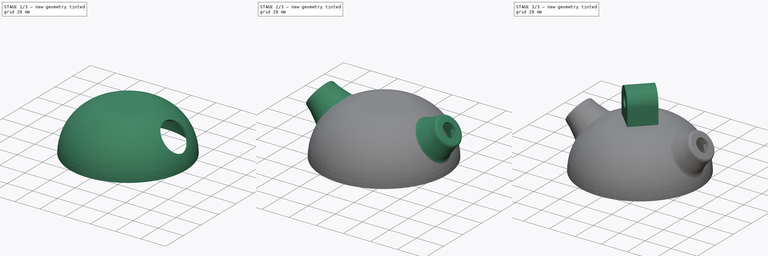
[diagram: build sequence overview — one tinted view per stage of 3, left to right]
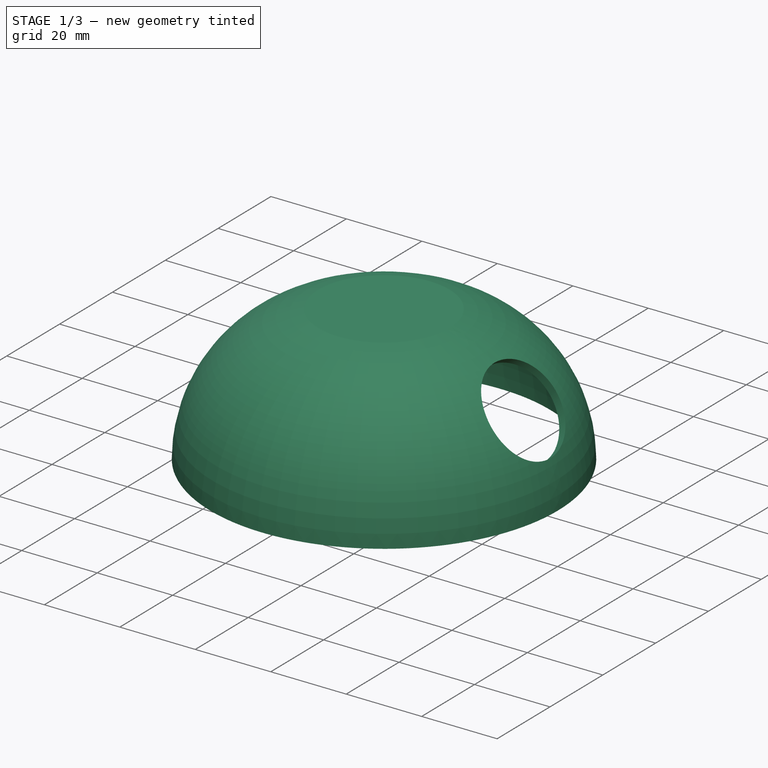
[diagram: stage 1 of 3 — iso view after this stage's code; geometry added in this stage tinted green]
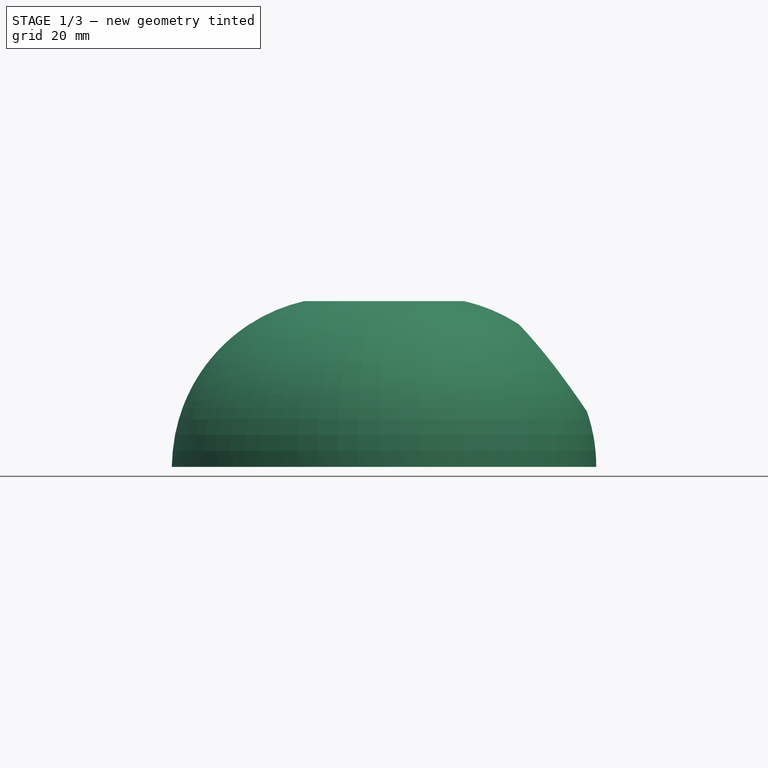
[diagram: stage 1 of 3 — front view after this stage's code; geometry added in this stage tinted green]
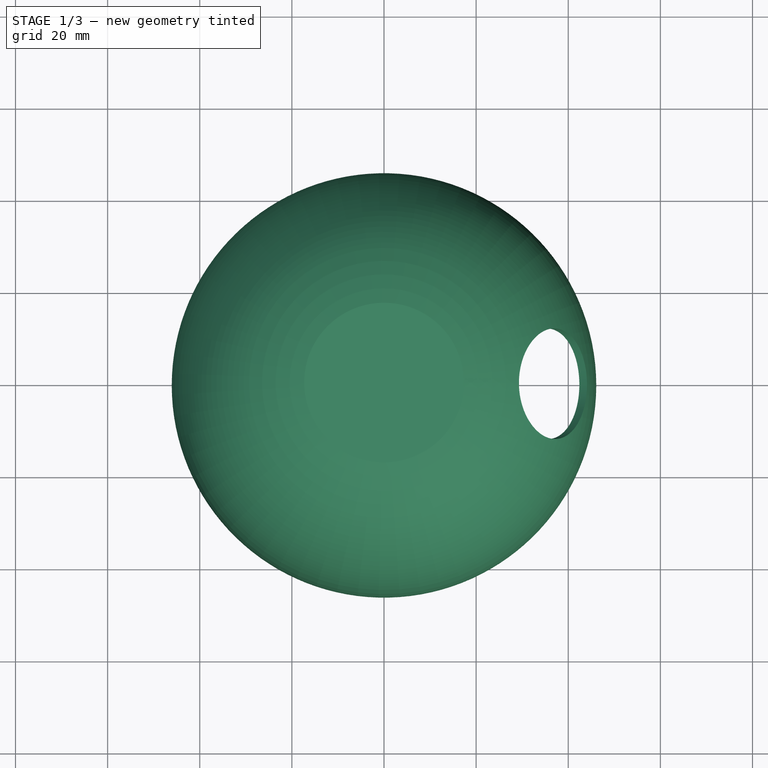
[diagram: stage 1 of 3 — top view after this stage's code; geometry added in this stage tinted green]
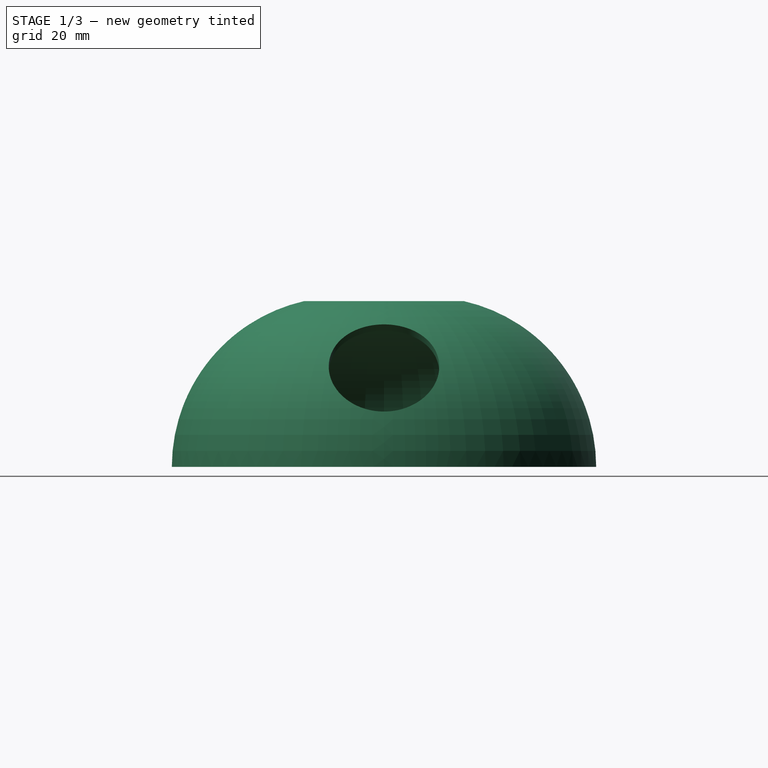
[diagram: stage 1 of 3 — right view after this stage's code; geometry added in this stage tinted green]
FCSTD DOCUMENT  (FreeCAD 0.19R24291 (Git))
Label: Vac_holder2
License: All rights reserved
LicenseURL: http://en.wikipedia.org/wiki/All_rights_reserved
objects: Sketcher::SketchObject×7, PartDesign::Plane×4, PartDesign::Line×3, PartDesign::Pocket×3, PartDesign::Revolution×2, PartDesign::Point×1, PartDesign::CoordinateSystem×1, PartDesign::Mirrored×1, PartDesign::Pad×1, PartDesign::Body×1
note: 30 computed .brp shape members not serialized (recipe doc carries the construction recipe); baked Part::Feature solids carry a one-line shape summary decoded from their .brp

FEATURE [Sketcher::SketchObject] Sketch
  FullyConstrained = true
  MapMode = 5
  Placement = pos=(0,0,0) rot=(1,0,0;1.5708rad)
  Support = -> [XZ_Plane]
  sketch-geometry (6):
    g0: LineSegment StartX=0 StartY=36 StartZ=0 EndX=17.327 EndY=36 EndZ=0
    g1: LineSegment StartX=0 StartY=34 StartZ=0 EndX=17.1 EndY=34 EndZ=0
    g2: LineSegment StartX=46.08 StartY=0 StartZ=0 EndX=44.08 EndY=0 EndZ=0
    g3: ArcOfCircle CenterX=9.16672 CenterY=0 CenterZ=0 NormalX=0 NormalY=0 NormalZ=1 AngleXU=0 Radius=36.9133 StartAngle=0 EndAngle=1.34789
    g4: ArcOfCircle CenterX=9.16672 CenterY=0 CenterZ=0 NormalX=0 NormalY=0 NormalZ=1 AngleXU=0 Radius=34.9133 StartAngle=0 EndAngle=1.34157
    g5: LineSegment StartX=0 StartY=34 StartZ=0 EndX=0 EndY=36 EndZ=0
  constraints (19):
    c: PointOnObject(g0,g-2)
    c: Horizontal(g0)
    c: PointOnObject(g1,g-2)
    c: Horizontal(g1)
    c: PointOnObject(g2,g-1)
    c: Horizontal(g2)
    c: PointOnObject(g3,g-1)
    c: Coincident(g3,g2)
    c: Coincident(g3,g0)
    c: Coincident(g4,g3)
    c: Coincident(g4,g2)
    c: Coincident(g4,g1)
    c: Distance(g2) = 2
    c: Distance(g-1,g2) = 44.08
    c: Coincident(g5,g1)
    c: Coincident(g5,g0)
    c: Distance(g5) = 2
    c: Distance(g-1,g1) = 34
    c: Distance(g1) = 17.1
FEATURE [PartDesign::Revolution] Revolution
  Angle = 360
  Axis = (0,2e-16,1)
  Base = (0,0,0)
  Placement = pos=(0,0,0) rot=(1,0,0;1.5708rad)
  Profile = -> Sketch
  ReferenceAxis = -> Sketch [V_Axis]
  Refine = true
  Reversed = true
FEATURE [Sketcher::SketchObject] Sketch001
  ExternalGeometry = -> [Revolution]
  FullyConstrained = true
  MapMode = 5
  Placement = pos=(0,0,0) rot=(1,0,0;1.5708rad)
  Support = -> [XZ_Plane]
  sketch-geometry (2):
    g0: LineSegment StartX=17.1 StartY=34 StartZ=0 EndX=17.1 EndY=33 EndZ=0
    g1: ArcOfCircle CenterX=10.4084 CenterY=0 CenterZ=0 NormalX=0 NormalY=0 NormalZ=1 AngleXU=0 Radius=33.6716 StartAngle=0 EndAngle=1.37073
  constraints (6):
    c: Coincident(g0,g-3)
    c: Vertical(g0)
    c: Distance(g0) = 1
    c: PointOnObject(g1,g-1)
    c: Coincident(g1,g-3)
    c: Coincident(g1,g0)
FEATURE [PartDesign::Line] DatumLine
  AttacherType = Attacher::AttachEngineLine
  Length = 20
  MapMode = 43
  Placement = pos=(4.16995,1.1e-15,-5.10039) rot=(0.393782,0.393782,0.830585;1.75536rad)
  ResizeMode = 0
  Support = -> [Sketch001]
FEATURE [PartDesign::Point] DatumPoint
  AttacherType = Attacher::AttachEnginePoint
  MapMode = 41
  Placement = pos=(38.2355,5.1e-15,22.7508) rot=(0,0,1;0rad)
  Support = -> [DatumLine,Revolution]
FEATURE [PartDesign::Plane] DatumPlane
  Length = 114.259
  MapMode = 7
  Placement = pos=(38.2355,-6.4e-15,22.7508) rot=(0.393782,0.393782,0.830585;1.75536rad)
  ResizeMode = 0
  Support = -> [DatumLine,DatumPoint]
  Width = 156.085
FEATURE [Sketcher::SketchObject] Sketch002
  FullyConstrained = true
  MapMode = 5
  Placement = pos=(38.2355,-6.4e-15,22.7508) rot=(0.393782,0.393782,0.830585;1.75536rad)
  Support = -> [DatumPlane]
  sketch-geometry (1):
    g0: Circle CenterX=0 CenterY=0 CenterZ=0 NormalX=0 NormalY=0 NormalZ=1 AngleXU=0 Radius=12
  constraints (2):
    c: Coincident(g0,g-1)
    c: Diameter(g0) = 24
FEATURE [PartDesign::Pocket] Pocket
  BaseFeature = -> Revolution
  Length = 5
  Length2 = 100
  Placement = pos=(0,0,0) rot=(1,0,0;1.5708rad)
  Profile = -> Sketch002
  Type = 4
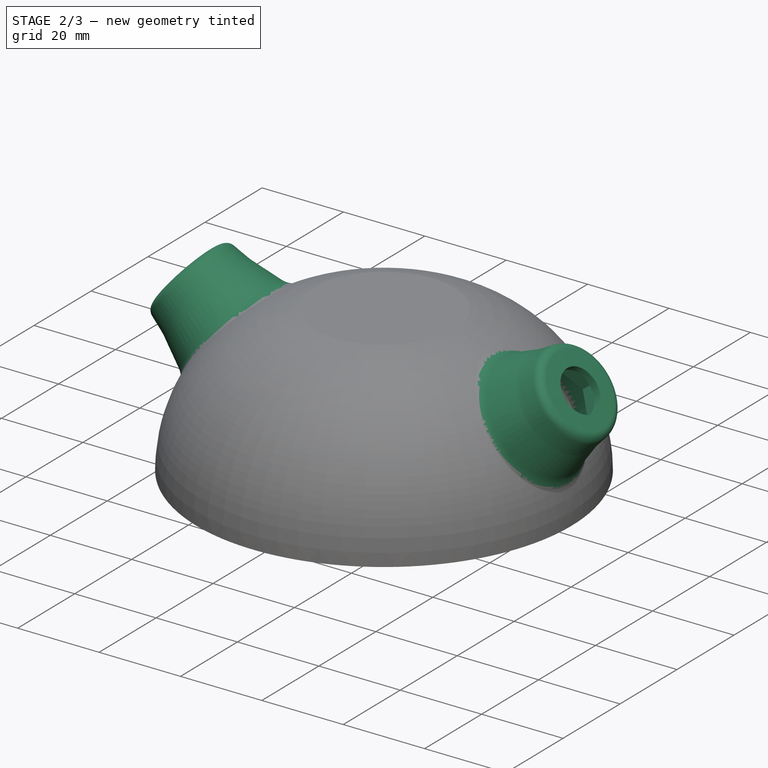
[diagram: stage 2 of 3 — iso view after this stage's code; geometry added in this stage tinted green]
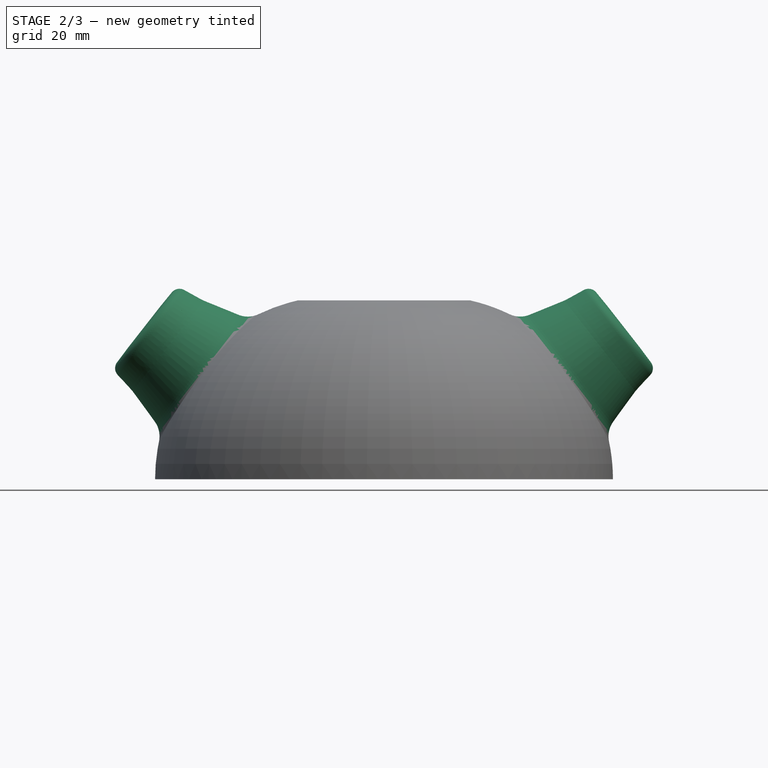
[diagram: stage 2 of 3 — front view after this stage's code; geometry added in this stage tinted green]
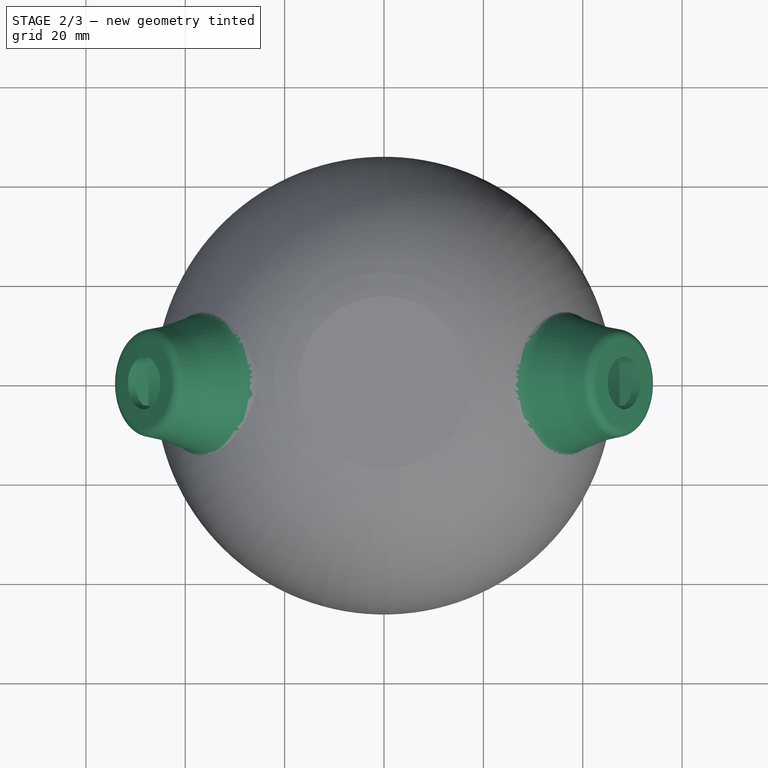
[diagram: stage 2 of 3 — top view after this stage's code; geometry added in this stage tinted green]
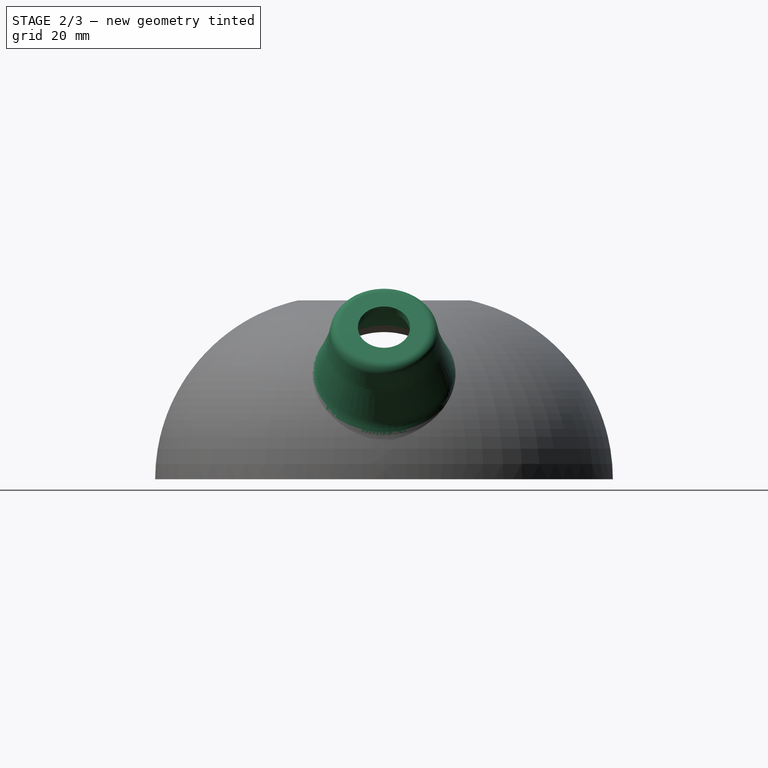
[diagram: stage 2 of 3 — right view after this stage's code; geometry added in this stage tinted green]
FEATURE [PartDesign::CoordinateSystem] Local_CS
  AttacherType = Attacher::AttachEngine3D
  MapMode = 2
  Placement = pos=(4.16995,1.1e-15,-5.10039) rot=(0.393782,0.393782,0.830585;1.75536rad)
  Support = -> [DatumLine]
FEATURE [PartDesign::Plane] DatumPlane001
  Length = 160.992
  MapMode = 4
  Placement = pos=(4.16995,1.1e-15,-5.10039) rot=(0.317855,0.670436,0.670436;3.7571rad)
  ResizeMode = 0
  Support = -> [Local_CS]
  Width = 164.356
FEATURE [Sketcher::SketchObject] Sketch003
  ExternalGeometry = -> [Pocket]
  FullyConstrained = false
  MapMode = 5
  Placement = pos=(4.16995,1.1e-15,-5.10039) rot=(0.317855,0.670436,0.670436;3.7571rad)
  Support = -> [DatumPlane001]
  sketch-geometry (29):
    g0: LineSegment StartX=12 StartY=42.2654 StartZ=0 EndX=9.66025 EndY=49.8723 EndZ=0
    g1: LineSegment StartX=9.66025 StartY=49.8723 StartZ=0 EndX=0 EndY=49.8723 EndZ=0
    g2: LineSegment StartX=4.33013 StartY=57.3723 StartZ=0 EndX=-4.33013 EndY=57.3723 EndZ=0
    g3: LineSegment StartX=-4.33013 StartY=57.3723 StartZ=0 EndX=-8.66025 EndY=49.8723 EndZ=0
    g4: LineSegment StartX=-8.66025 StartY=49.8723 StartZ=0 EndX=-4.33013 EndY=42.3723 EndZ=0
    g5: LineSegment StartX=-4.33013 StartY=42.3723 StartZ=0 EndX=4.33013 EndY=42.3723 EndZ=0
    g6: LineSegment StartX=4.33013 StartY=42.3723 StartZ=0 EndX=8.66025 EndY=49.8723 EndZ=0
    g7: LineSegment StartX=8.66025 StartY=49.8723 StartZ=0 EndX=4.33013 EndY=57.3723 EndZ=0
    g8: Circle CenterX=0 CenterY=49.8723 CenterZ=0 NormalX=0 NormalY=0 NormalZ=1 AngleXU=0 Radius=8.66025
    g9: LineSegment StartX=13.6709 StartY=43.6361 StartZ=0 EndX=11.5719 EndY=50.4603 EndZ=0
    g10: LineSegment StartX=5.26011 StartY=64.1779 StartZ=0 EndX=7.17172 EndY=64.7659 EndZ=0
    g11: ArcOfCircle CenterX=18.4499 CenterY=45.106 CenterZ=0 NormalX=0 NormalY=0 NormalZ=1 AngleXU=0 Radius=5 StartAngle=3.43999 EndAngle=4.27019
    g12: LineSegment StartX=-12 StartY=39.5846 StartZ=0 EndX=12 EndY=40.1601 EndZ=0
    g13: LineSegment StartX=0 StartY=54.8723 StartZ=0 EndX=0 EndY=39.8723 EndZ=0
    g14: LineSegment StartX=0 StartY=56.8723 StartZ=0 EndX=6.5 EndY=56.8723 EndZ=0
    g15: LineSegment StartX=0 StartY=49.8723 StartZ=0 EndX=8.66025 EndY=49.8723 EndZ=0
    g16: LineSegment StartX=0 StartY=54.8723 StartZ=0 EndX=8.66025 EndY=54.8723 EndZ=0
    g17: Circle CenterX=8.66025 CenterY=54.8723 CenterZ=0 NormalX=0 NormalY=0 NormalZ=1 AngleXU=0 Radius=2
    g18: ArcOfCircle CenterX=8.66025 CenterY=54.8723 CenterZ=0 NormalX=0 NormalY=0 NormalZ=1 AngleXU=0 Radius=2 StartAngle=0.179596 EndAngle=1.5708
    g19: LineSegment StartX=6.5 StartY=56.8723 StartZ=0 EndX=8.66025 EndY=56.8723 EndZ=0
    g20: ArcOfCircle CenterX=21.9662 CenterY=53.6574 CenterZ=0 NormalX=0 NormalY=0 NormalZ=1 AngleXU=0 Radius=10.8749 StartAngle=3.32119 EndAngle=3.43999
    g21: LineSegment StartX=10.6281 StartY=55.2296 StartZ=0 EndX=11.2662 EndY=51.7148 EndZ=0
    g22: Circle CenterX=9.66025 CenterY=49.8723 CenterZ=0 NormalX=0 NormalY=0 NormalZ=1 AngleXU=0 Radius=2
    g23: LineSegment StartX=0 StartY=49.8723 StartZ=0 EndX=0 EndY=54.8723 EndZ=0
    g24: LineSegment StartX=0 StartY=54.8723 StartZ=0 EndX=5 EndY=54.8723 EndZ=0
    g25: LineSegment StartX=5 StartY=54.8723 StartZ=0 EndX=5 EndY=56.8723 EndZ=0
    g26: LineSegment StartX=5 StartY=56.8723 StartZ=0 EndX=6.5 EndY=56.8723 EndZ=0
    g27: LineSegment StartX=12 StartY=42.2654 StartZ=0 EndX=12.45 EndY=40.9925 EndZ=0
    g28: LineSegment StartX=12.45 StartY=40.9925 StartZ=0 EndX=16.3103 EndY=40.587 EndZ=0
  constraints (75):
    c: Coincident(g0,g-3)
    c: Coincident(g1,g0)
    c: PointOnObject(g1,g-2)
    c: Horizontal(g1)
    c: Coincident(g2,g3)
    c: Coincident(g3,g4)
    c: Coincident(g4,g5)
    c: Coincident(g5,g6)
    c: Coincident(g6,g7)
    c: Coincident(g7,g2)
    c: Equal(g2, g3-g7) x5
    c: PointOnObject(g2,g8)
    c: PointOnObject(g3,g8)
    c: PointOnObject(g4,g8)
    c: PointOnObject(g5,g8)
    c: PointOnObject(g6,g8)
    c: PointOnObject(g7,g8)
    c: Coincident(g8,g1)
    c: Distance(g6,g4) = 15
    c: PointOnObject(g6,g1)
    c: Distance(g6,g0) = 1
    c: Parallel(g0,g9)
    c: PointOnObject(g10,g0)
    c: PointOnObject(g10,g9)
    c: Perpendicular(g0,g10)
    c: Distance(g10) = 2
    c: Coincident(g11,g9)
    c: Tangent(g9,g11)
    c: Tangent(g11,g-3)
    c: Coincident(g12,g-5)
    c: Coincident(g12,g-4)
    c: PointOnObject(g13,g-2)
    c: PointOnObject(g13,g12)
    c: Vertical(g13)
    c: Distance(g13) = 15
    c: Distance(g1,g13) = 5
    c: PointOnObject(g14,g-2)
    c: Horizontal(g14)
    c: Distance(g1,g14) = 7
    c: Distance(g14) = 6.5
    c: Coincident(g15,g1)
    c: Coincident(g15,g6)
    c: Coincident(g16,g13)
    c: Horizontal(g16)
    c: Equal(g15,g16)
    c: Coincident(g17,g16)
    c: Radius(g17) = 2
    c: Coincident(g18,g16)
    c: PointOnObject(g18,g17)
    c: Coincident(g19,g14)
    c: Coincident(g19,g18)
    c: Horizontal(g19)
    c: Coincident(g20,g9)
    c: Coincident(g21,g18)
    c: Coincident(g21,g20)
    c: Tangent(g18,g21)
    c: Tangent(g21,g20)
    c: Tangent(g20,g9)
    c: Radius(g11) = 5
    c: Coincident(g22,g0)
    c: Radius(g22) = 2
    c: PointOnObject(g9,g22)
    c: Coincident(g23,g1)
    c: Coincident(g23,g13)
    c: Coincident(g24,g23)
    c: PointOnObject(g24,g16)
    c: Distance(g24) = 5
    c: Coincident(g25,g24)
    c: PointOnObject(g25,g14)
    c: Vertical(g25)
    c: Coincident(g26,g25)
    c: Coincident(g26,g19)
    c: Coincident(g27,g0)
    c: Coincident(g28,g27)
    c: Coincident(g28,g11)
FEATURE [PartDesign::Line] DatumLine001
  AttacherType = Attacher::AttachEngineLine
  Length = 20
  MapMode = 25
  Placement = pos=(38.2355,5.1e-15,22.7508) rot=(0.43799,0,0.89898;3.14159rad)
  ResizeMode = 0
  Support = -> [Pocket,DatumPoint]
FEATURE [PartDesign::Revolution] Revolution001
  Angle = 360
  Axis = (0.787488,7e-16,0.61633)
  Base = (38.2355,2.53e-14,22.7508)
  BaseFeature = -> Pocket
  Placement = pos=(0,0,0) rot=(1,0,0;1.5708rad)
  Profile = -> Sketch003
  ReferenceAxis = -> DatumLine001
  Reversed = true
FEATURE [PartDesign::Plane] DatumPlane002
  Length = 154.979
  MapMode = 11
  Placement = pos=(36.5734,-0.0126487,21.3933) rot=(0.443091,-0.001253,0.896476;3.14035rad)
  ResizeMode = 0
  Support = -> [Revolution001]
  Width = 114.6
FEATURE [Sketcher::SketchObject] Sketch004
  FullyConstrained = true
  MapMode = 5
  Placement = pos=(36.5734,-0.0126487,21.3933) rot=(0.443091,-0.001253,0.896476;3.14035rad)
  Support = -> [DatumPlane002]
  sketch-geometry (7):
    g0: LineSegment StartX=0 StartY=8.66025 StartZ=0 EndX=-7.5 EndY=4.33013 EndZ=0
    g1: LineSegment StartX=-7.5 StartY=4.33013 StartZ=0 EndX=-7.5 EndY=-4.33013 EndZ=0
    g2: LineSegment StartX=-7.5 StartY=-4.33013 StartZ=0 EndX=1.8e-15 EndY=-8.66025 EndZ=0
    g3: LineSegment StartX=1.8e-15 StartY=-8.66025 StartZ=0 EndX=7.5 EndY=-4.33013 EndZ=0
    g4: LineSegment StartX=7.5 StartY=-4.33013 StartZ=0 EndX=7.5 EndY=4.33013 EndZ=0
    g5: LineSegment StartX=7.5 StartY=4.33013 StartZ=0 EndX=0 EndY=8.66025 EndZ=0
    g6: Circle CenterX=0 CenterY=0 CenterZ=0 NormalX=0 NormalY=0 NormalZ=1 AngleXU=0 Radius=8.66025
  constraints (16):
    c: Coincident(g0,g1)
    c: Coincident(g1,g2)
    c: Coincident(g2,g3)
    c: Coincident(g3,g4)
    c: Coincident(g4,g5)
    c: Coincident(g5,g0)
    c: Equal(g0, g1-g5) x5
    c: PointOnObject(g0,g6)
    c: PointOnObject(g1,g6)
    c: PointOnObject(g2,g6)
    c: PointOnObject(g3,g6)
    c: PointOnObject(g4,g6)
    c: PointOnObject(g5,g6)
    c: Coincident(g6,g-1)
    c: PointOnObject(g5,g-2)
    c: Distance(g3,g1) = 15
FEATURE [PartDesign::Pocket] Pocket001
  BaseFeature = -> Revolution001
  Length = 13.02
  Length2 = 100
  Placement = pos=(0,0,0) rot=(1,0,0;1.5708rad)
  Profile = -> Sketch004
  Reversed = true
  Type = 0
FEATURE [PartDesign::Mirrored] Mirrored
  BaseFeature = -> Pocket001
  MirrorPlane = -> YZ_Plane
  Originals = -> [Pocket,Revolution001,Pocket001]
  Placement = pos=(0,0,0) rot=(1,0,0;1.5708rad)
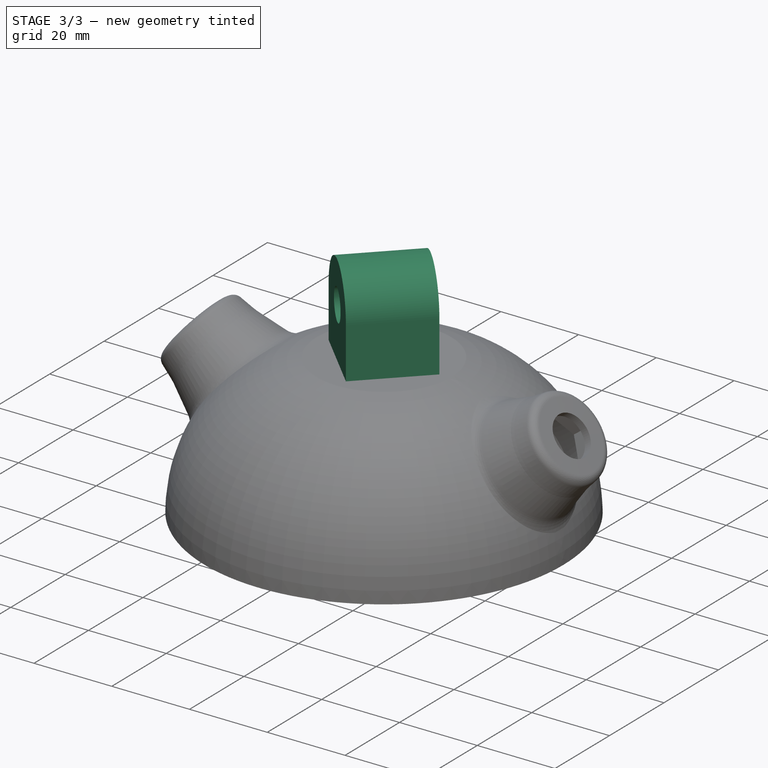
[diagram: stage 3 of 3 — iso view after this stage's code; geometry added in this stage tinted green]
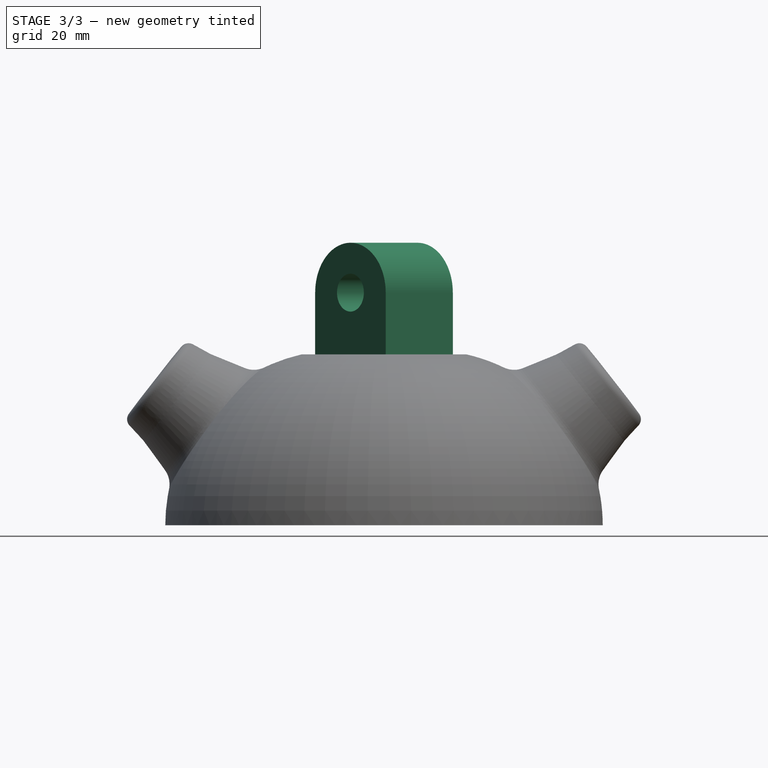
[diagram: stage 3 of 3 — front view after this stage's code; geometry added in this stage tinted green]
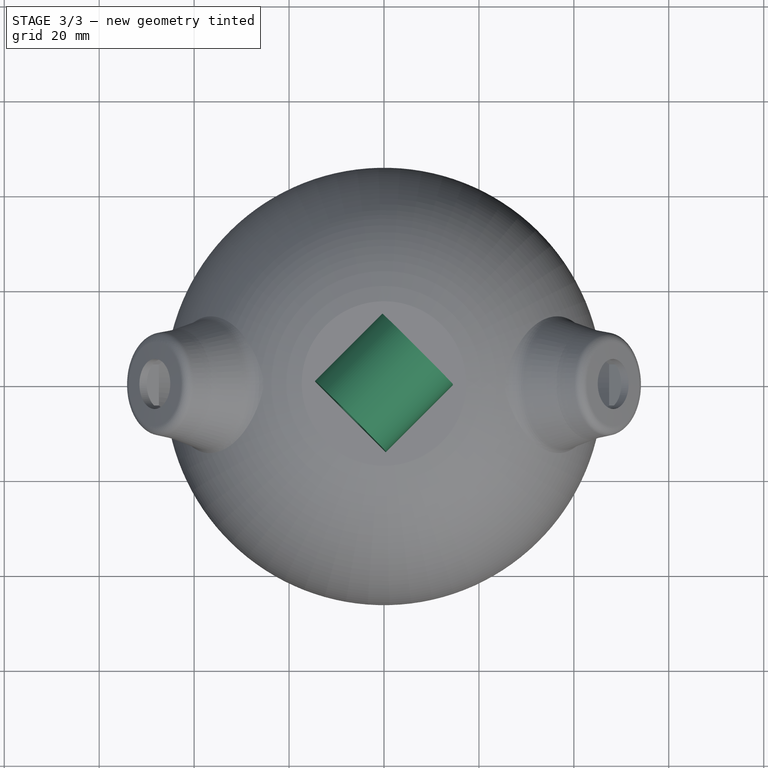
[diagram: stage 3 of 3 — top view after this stage's code; geometry added in this stage tinted green]
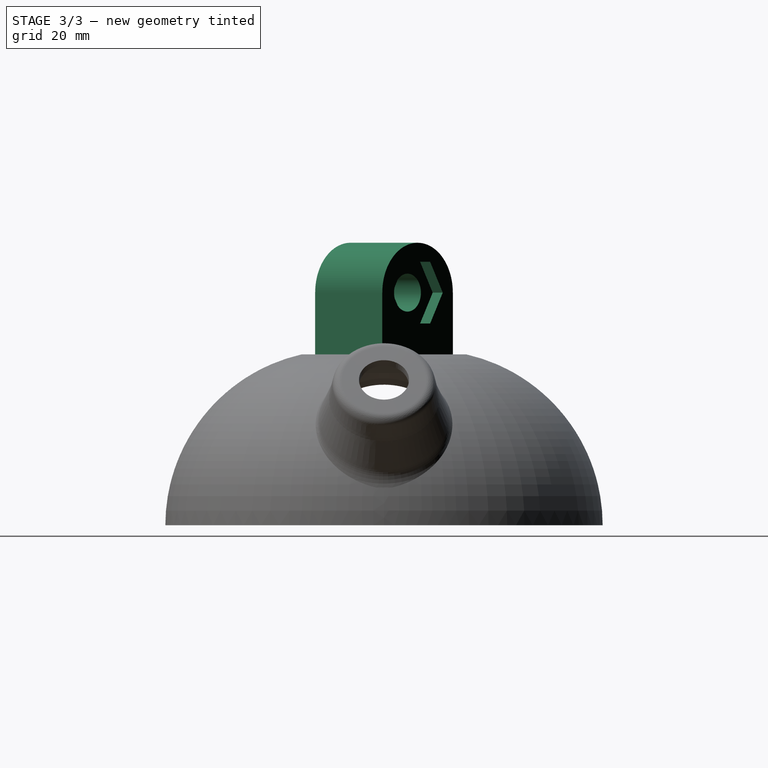
[diagram: stage 3 of 3 — right view after this stage's code; geometry added in this stage tinted green]
FEATURE [PartDesign::Plane] DatumPlane003
  AttachmentOffset = pos=(0,0,0) rot=(0,1,0;0.785398rad)
  Length = 163.508
  MapMode = 5
  Placement = pos=(0,0,0) rot=(0.281085,0.678598,0.678598;2.59356rad)
  ResizeMode = 0
  Support = -> [YZ_Plane]
  Width = 106.3
FEATURE [Sketcher::SketchObject] Sketch005
  ExternalGeometry = -> [Mirrored]
  FullyConstrained = false
  MapMode = 5
  Placement = pos=(0,0,0) rot=(0.281085,0.678598,0.678598;2.59356rad)
  Support = -> [DatumPlane003]
  sketch-geometry (13):
    g0: Circle CenterX=0 CenterY=49 CenterZ=0 NormalX=0 NormalY=0 NormalZ=1 AngleXU=0 Radius=4
    g1: ArcOfCircle CenterX=0 CenterY=49 CenterZ=0 NormalX=0 NormalY=0 NormalZ=1 AngleXU=0 Radius=10.5056 StartAngle=2.79406e-06 EndAngle=3.14159
    g2: LineSegment StartX=-10.5056 StartY=49 StartZ=0 EndX=-10.5056 EndY=36 EndZ=0
    g3: LineSegment StartX=10.5056 StartY=49 StartZ=0 EndX=10.5056 EndY=36 EndZ=0
    g4: LineSegment StartX=-10.5056 StartY=36 StartZ=0 EndX=10.5056 EndY=36 EndZ=0
    g5: LineSegment StartX=6.5 StartY=52.7528 StartZ=0 EndX=0 EndY=56.5056 EndZ=0
    g6: LineSegment StartX=0 StartY=56.5056 StartZ=0 EndX=-6.5 EndY=52.7528 EndZ=0
    g7: LineSegment StartX=-6.5 StartY=52.7528 StartZ=0 EndX=-6.5 EndY=45.2472 EndZ=0
    g8: LineSegment StartX=-6.5 StartY=45.2472 StartZ=0 EndX=0 EndY=41.4944 EndZ=0
    g9: LineSegment StartX=0 StartY=41.4944 StartZ=0 EndX=6.5 EndY=45.2472 EndZ=0
    g10: LineSegment StartX=6.5 StartY=45.2472 StartZ=0 EndX=6.5 EndY=52.7528 EndZ=0
    g11: Circle CenterX=0 CenterY=49 CenterZ=0 NormalX=0 NormalY=0 NormalZ=1 AngleXU=0 Radius=7.50555
    g12: GeomPoint X=0 Y=59.5056 Z=0
  constraints (31):
    c: PointOnObject(g0,g-2)
    c: Radius(g0) = 4
    c: Coincident(g1,g0)
    c: Coincident(g2,g1)
    c: Vertical(g2)
    c: Coincident(g3,g1)
    c: Vertical(g3)
    c: Tangent(g3,g1)
    c: Tangent(g2,g1)
    c: Coincident(g4,g2)
    c: Coincident(g4,g3)
    c: Coincident(g5,g6)
    c: Coincident(g6,g7)
    c: Coincident(g7,g8)
    c: Coincident(g8,g9)
    c: Coincident(g9,g10)
    c: Coincident(g10,g5)
    c: Equal(g5, g6-g10) x5
    c: PointOnObject(g5,g11)
    c: PointOnObject(g6,g11)
    c: PointOnObject(g7,g11)
    c: PointOnObject(g8,g11)
    c: PointOnObject(g9,g11)
    c: PointOnObject(g10,g11)
    c: Coincident(g11,g0)
    c: Distance(g9,g7) = 13
    c: Vertical(g10)
    c: PointOnObject(g12,g1)
    c: PointOnObject(g12,g-2)
    c: Distance(g5,g12) = 3
    c: Distance(g0,g-3) = 15
FEATURE [PartDesign::Pad] Pad
  BaseFeature = -> Mirrored
  Direction = (1,1,1)
  Length = 10
  Length2 = 10
  Placement = pos=(0,0,0) rot=(1,0,0;1.5708rad)
  Profile = -> Sketch005
  Type = 4
FEATURE [PartDesign::Line] DatumLine002
  AttacherType = Attacher::AttachEngineLine
  Length = 20
  MapMode = 29
  Placement = pos=(31.5803,7.1e-14,24.5802) rot=(0.68715,0.68715,0.235901;2.67826rad)
  ResizeMode = 0
FEATURE [Sketcher::SketchObject] Sketch006
  ExternalGeometry = -> [Pad]
  FullyConstrained = true
  MapMode = 5
  Placement = pos=(7.07107,7.07107,1e-16) rot=(0.678598,0.281085,0.678598;3.68962rad)
  Support = -> [Pad]
  sketch-geometry (7):
    g0: LineSegment StartX=55.5 StartY=3.75278 StartZ=0 EndX=49 EndY=7.50555 EndZ=0
    g1: LineSegment StartX=49 StartY=7.50555 StartZ=0 EndX=42.5 EndY=3.75278 EndZ=0
    g2: LineSegment StartX=42.5 StartY=3.75278 StartZ=0 EndX=42.5 EndY=-3.75278 EndZ=0
    g3: LineSegment StartX=42.5 StartY=-3.75278 StartZ=0 EndX=49 EndY=-7.50555 EndZ=0
    g4: LineSegment StartX=49 StartY=-7.50555 StartZ=0 EndX=55.5 EndY=-3.75278 EndZ=0
    g5: LineSegment StartX=55.5 StartY=-3.75278 StartZ=0 EndX=55.5 EndY=3.75278 EndZ=0
    g6: Circle CenterX=49 CenterY=-2.84e-14 CenterZ=0 NormalX=0 NormalY=0 NormalZ=1 AngleXU=0 Radius=7.50555
  constraints (16):
    c: Coincident(g0,g1)
    c: Coincident(g1,g2)
    c: Coincident(g2,g3)
    c: Coincident(g3,g4)
    c: Coincident(g4,g5)
    c: Coincident(g5,g0)
    c: Equal(g0, g1-g5) x5
    c: PointOnObject(g0,g6)
    c: PointOnObject(g1,g6)
    c: PointOnObject(g2,g6)
    c: PointOnObject(g3,g6)
    c: PointOnObject(g4,g6)
    c: PointOnObject(g5,g6)
    c: Coincident(g6,g-3)
    c: Vertical(g5)
    c: Distance(g4,g2) = 13
FEATURE [PartDesign::Pocket] Pocket002
  BaseFeature = -> Pad
  Length = 3
  Length2 = 100
  Placement = pos=(0,0,0) rot=(1,0,0;1.5708rad)
  Profile = -> Sketch006
  Type = 0
FEATURE [PartDesign::Body] Body
  Group = -> [Sketch,Revolution,Sketch001,DatumLine,DatumPoint,DatumPlane,Sketch002,Pocket,Local_CS,DatumPlane001,Sketch003,DatumLine001,Revolution001,DatumPlane002,Sketch004,Pocket001,Mirrored,DatumPlane003,Sketch005,Pad,DatumLine002,Sketch006,Pocket002]
  Origin = -> Origin
  Tip = -> Pocket002
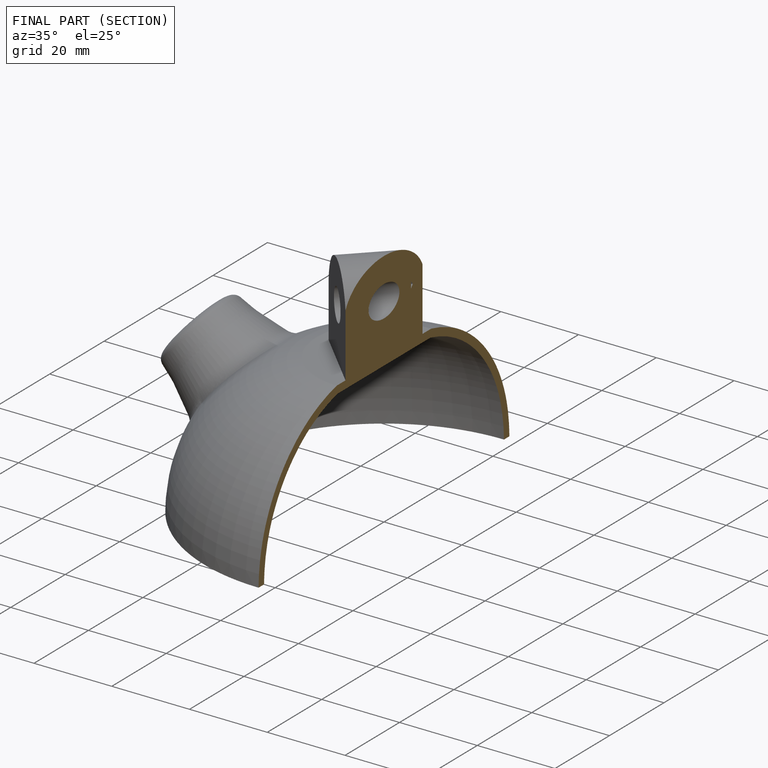
[diagram: finished part — half-section view (interior)]
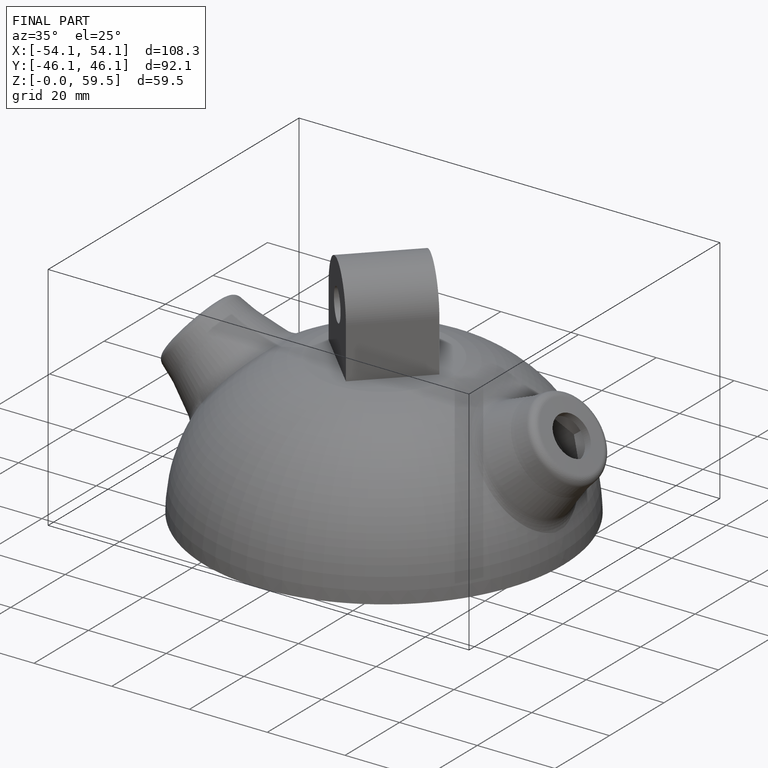
[diagram: finished part — iso view with bounding-box wireframe]
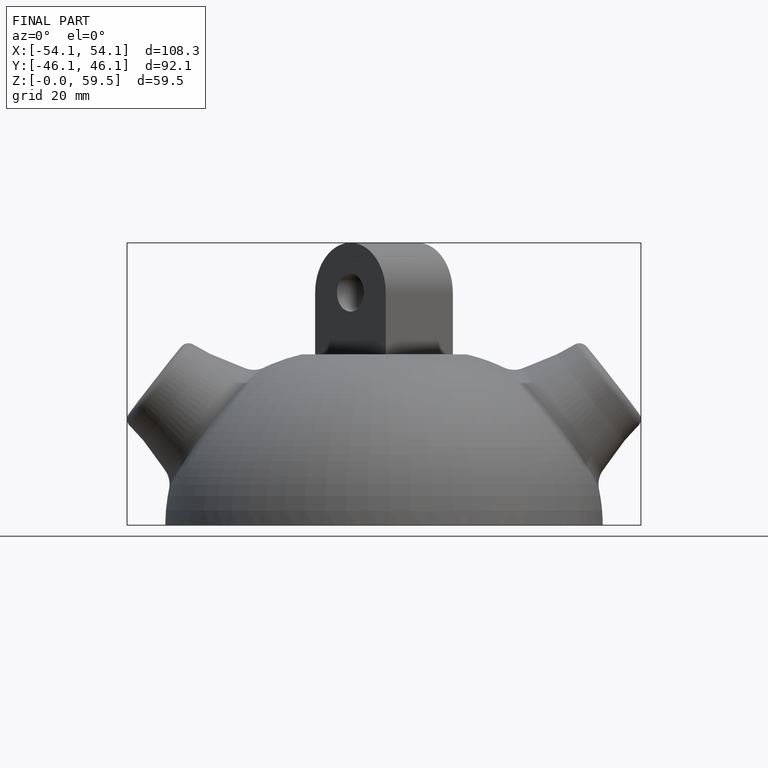
[diagram: finished part — front view with bounding-box wireframe]
